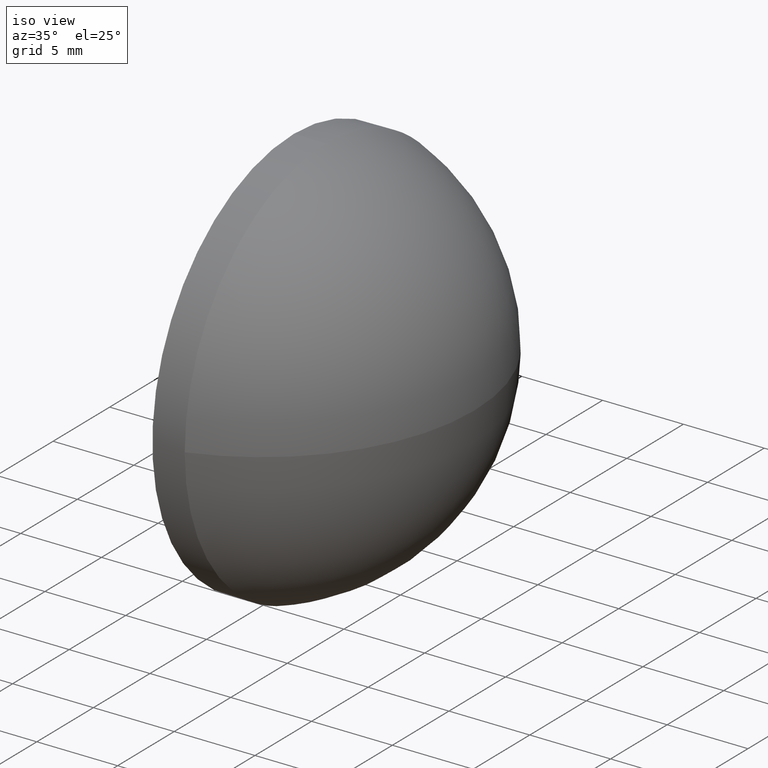
[diagram: clean part render]
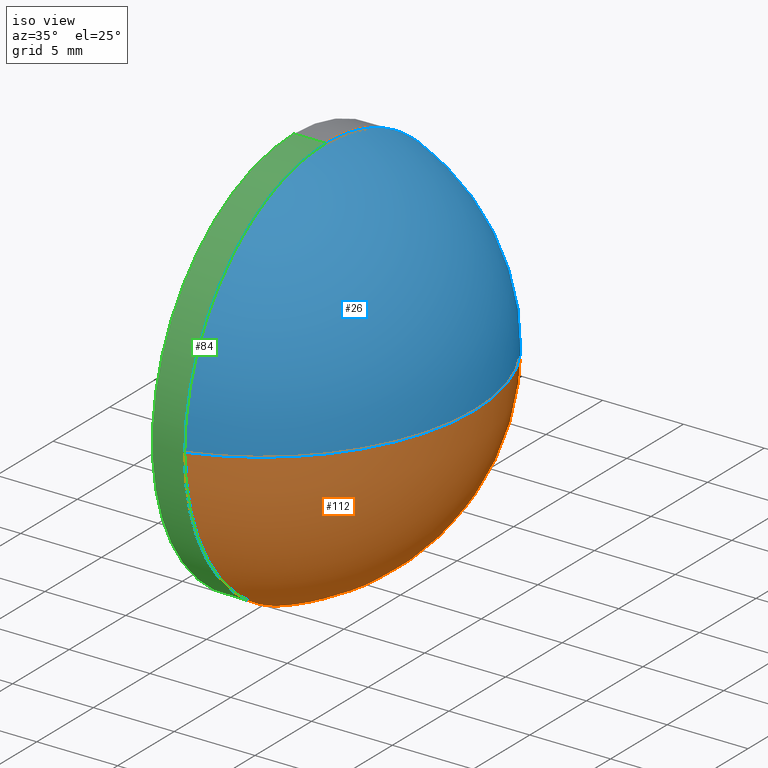
[diagram: same view with three faces highlighted in distinct colors, each labeled with its STEP entity id]
A machine part, iso view with three faces highlighted in distinct colors.
Their STEP definitions:

[orange] entity #112 — the highlighted spherical surface has radius 13.1089 mm.
#5 = CARTESIAN_POINT ( 'NONE',  ( 207.2844079542375400, -115.1914362713783500, -1.530808498934191500E-015 ) ) ;
#8 = DIRECTION ( 'NONE',  ( 1.000000000000000000, 0.0000000000000000000, 0.0000000000000000000 ) ) ;
#9 = ORIENTED_EDGE ( 'NONE', *, *, #115, .F. ) ;
#11 = CIRCLE ( 'NONE', #184, 12.49999999999999600 ) ;
#22 = CIRCLE ( 'NONE', #107, 13.10893013100439200 ) ;
#28 = ORIENTED_EDGE ( 'NONE', *, *, #55, .F. ) ;
#29 = DIRECTION ( 'NONE',  ( -0.0000000000000000000, 0.0000000000000000000, -1.000000000000000000 ) ) ;
#34 = DIRECTION ( 'NONE',  ( 0.0000000000000000000, 1.000000000000000000, 0.0000000000000000000 ) ) ;
#42 = CIRCLE ( 'NONE', #73, 12.49999999999999600 ) ;
#47 = DIRECTION ( 'NONE',  ( 0.0000000000000000000, 1.224646799147353200E-016, -1.000000000000000000 ) ) ;
#50 = VERTEX_POINT ( 'NONE', #88 ) ;
#51 = EDGE_LOOP ( 'NONE', ( #124, #65, #28, #9 ) ) ;
#55 = EDGE_CURVE ( 'NONE', #174, #133, #11, .T. ) ;
#56 = DIRECTION ( 'NONE',  ( 0.0000000000000000000, 0.0000000000000000000, 1.000000000000000000 ) ) ;
#59 = CARTESIAN_POINT ( 'NONE',  ( 207.2844079542375400, -102.6914362713783400, 0.0000000000000000000 ) ) ;
#60 = SPHERICAL_SURFACE ( 'NONE', #81, 13.10893013100438500 ) ;
#61 = DIRECTION ( 'NONE',  ( 0.0000000000000000000, 0.0000000000000000000, 1.000000000000000000 ) ) ;
#65 = ORIENTED_EDGE ( 'NONE', *, *, #137, .T. ) ;
#72 = DIRECTION ( 'NONE',  ( -1.000000000000000000, -0.0000000000000000000, -0.0000000000000000000 ) ) ;
#73 = AXIS2_PLACEMENT_3D ( 'NONE', #95, #136, #61 ) ;
#81 = AXIS2_PLACEMENT_3D ( 'NONE', #86, #29, #34 ) ;
#86 = CARTESIAN_POINT ( 'NONE',  ( 203.3354778232331100, -102.6914362713783400, 0.0000000000000000000 ) ) ;
#88 = CARTESIAN_POINT ( 'NONE',  ( 216.4444079542375100, -102.6914362713783400, 0.0000000000000000000 ) ) ;
#93 = DIRECTION ( 'NONE',  ( -0.0000000000000000000, 0.0000000000000000000, 1.000000000000000000 ) ) ;
#94 = FACE_OUTER_BOUND ( 'NONE', #51, .T. ) ;
#95 = CARTESIAN_POINT ( 'NONE',  ( 207.2844079542375400, -102.6914362713783400, 0.0000000000000000000 ) ) ;
#107 = AXIS2_PLACEMENT_3D ( 'NONE', #180, #93, #8 ) ;
#110 = DIRECTION ( 'NONE',  ( 0.0000000000000000000, 1.000000000000000000, 1.224646799147352500E-016 ) ) ;
#112 = ADVANCED_FACE ( 'NONE', ( #94 ), #60, .T. ) ;
#115 = EDGE_CURVE ( 'NONE', #152, #174, #42, .T. ) ;
#124 = ORIENTED_EDGE ( 'NONE', *, *, #127, .F. ) ;
#127 = EDGE_CURVE ( 'NONE', #50, #152, #22, .T. ) ;
#133 = VERTEX_POINT ( 'NONE', #5 ) ;
#136 = DIRECTION ( 'NONE',  ( -1.000000000000000000, -0.0000000000000000000, -0.0000000000000000000 ) ) ;
#137 = EDGE_CURVE ( 'NONE', #50, #133, #172, .T. ) ;
#152 = VERTEX_POINT ( 'NONE', #167 ) ;
#155 = AXIS2_PLACEMENT_3D ( 'NONE', #178, #47, #110 ) ;
#167 = CARTESIAN_POINT ( 'NONE',  ( 207.2844079542375400, -90.19143627137832200, 0.0000000000000000000 ) ) ;
#168 = CARTESIAN_POINT ( 'NONE',  ( 207.2844079542375400, -102.6914362713783400, -12.49999999999999600 ) ) ;
#172 = CIRCLE ( 'NONE', #155, 13.10893013100439200 ) ;
#174 = VERTEX_POINT ( 'NONE', #168 ) ;
#178 = CARTESIAN_POINT ( 'NONE',  ( 203.3354778232331100, -102.6914362713783400, 0.0000000000000000000 ) ) ;
#180 = CARTESIAN_POINT ( 'NONE',  ( 203.3354778232331100, -102.6914362713783400, 0.0000000000000000000 ) ) ;
#184 = AXIS2_PLACEMENT_3D ( 'NONE', #59, #72, #56 ) ;

[blue] entity #26 — the highlighted spherical surface has radius 13.1089 mm.
#5 = CARTESIAN_POINT ( 'NONE',  ( 207.2844079542375400, -115.1914362713783500, -1.530808498934191500E-015 ) ) ;
#8 = DIRECTION ( 'NONE',  ( 1.000000000000000000, 0.0000000000000000000, 0.0000000000000000000 ) ) ;
#14 = DIRECTION ( 'NONE',  ( -1.000000000000000000, -0.0000000000000000000, -0.0000000000000000000 ) ) ;
#22 = CIRCLE ( 'NONE', #107, 13.10893013100439200 ) ;
#26 = ADVANCED_FACE ( 'NONE', ( #82 ), #145, .T. ) ;
#33 = DIRECTION ( 'NONE',  ( -1.000000000000000000, -0.0000000000000000000, -0.0000000000000000000 ) ) ;
#41 = AXIS2_PLACEMENT_3D ( 'NONE', #117, #33, #75 ) ;
#47 = DIRECTION ( 'NONE',  ( 0.0000000000000000000, 1.224646799147353200E-016, -1.000000000000000000 ) ) ;
#49 = ORIENTED_EDGE ( 'NONE', *, *, #127, .T. ) ;
#50 = VERTEX_POINT ( 'NONE', #88 ) ;
#52 = AXIS2_PLACEMENT_3D ( 'NONE', #130, #147, #105 ) ;
#67 = ORIENTED_EDGE ( 'NONE', *, *, #99, .F. ) ;
#70 = VERTEX_POINT ( 'NONE', #160 ) ;
#75 = DIRECTION ( 'NONE',  ( 0.0000000000000000000, 0.0000000000000000000, 1.000000000000000000 ) ) ;
#79 = EDGE_CURVE ( 'NONE', #70, #152, #141, .T. ) ;
#82 = FACE_OUTER_BOUND ( 'NONE', #183, .T. ) ;
#88 = CARTESIAN_POINT ( 'NONE',  ( 216.4444079542375100, -102.6914362713783400, 0.0000000000000000000 ) ) ;
#90 = CIRCLE ( 'NONE', #98, 12.49999999999999600 ) ;
#93 = DIRECTION ( 'NONE',  ( -0.0000000000000000000, 0.0000000000000000000, 1.000000000000000000 ) ) ;
#98 = AXIS2_PLACEMENT_3D ( 'NONE', #103, #14, #116 ) ;
#99 = EDGE_CURVE ( 'NONE', #133, #70, #90, .T. ) ;
#103 = CARTESIAN_POINT ( 'NONE',  ( 207.2844079542375400, -102.6914362713783400, 0.0000000000000000000 ) ) ;
#105 = DIRECTION ( 'NONE',  ( 0.0000000000000000000, 1.000000000000000000, 0.0000000000000000000 ) ) ;
#107 = AXIS2_PLACEMENT_3D ( 'NONE', #180, #93, #8 ) ;
#110 = DIRECTION ( 'NONE',  ( 0.0000000000000000000, 1.000000000000000000, 1.224646799147352500E-016 ) ) ;
#116 = DIRECTION ( 'NONE',  ( 0.0000000000000000000, 0.0000000000000000000, 1.000000000000000000 ) ) ;
#117 = CARTESIAN_POINT ( 'NONE',  ( 207.2844079542375400, -102.6914362713783400, 0.0000000000000000000 ) ) ;
#125 = ORIENTED_EDGE ( 'NONE', *, *, #137, .F. ) ;
#127 = EDGE_CURVE ( 'NONE', #50, #152, #22, .T. ) ;
#130 = CARTESIAN_POINT ( 'NONE',  ( 203.3354778232331100, -102.6914362713783400, 0.0000000000000000000 ) ) ;
#133 = VERTEX_POINT ( 'NONE', #5 ) ;
#137 = EDGE_CURVE ( 'NONE', #50, #133, #172, .T. ) ;
#141 = CIRCLE ( 'NONE', #41, 12.49999999999999600 ) ;
#145 = SPHERICAL_SURFACE ( 'NONE', #52, 13.10893013100438500 ) ;
#147 = DIRECTION ( 'NONE',  ( -0.0000000000000000000, 0.0000000000000000000, -1.000000000000000000 ) ) ;
#152 = VERTEX_POINT ( 'NONE', #167 ) ;
#155 = AXIS2_PLACEMENT_3D ( 'NONE', #178, #47, #110 ) ;
#160 = CARTESIAN_POINT ( 'NONE',  ( 207.2844079542375400, -102.6914362713783400, 12.49999999999999600 ) ) ;
#167 = CARTESIAN_POINT ( 'NONE',  ( 207.2844079542375400, -90.19143627137832200, 0.0000000000000000000 ) ) ;
#170 = ORIENTED_EDGE ( 'NONE', *, *, #79, .F. ) ;
#172 = CIRCLE ( 'NONE', #155, 13.10893013100439200 ) ;
#178 = CARTESIAN_POINT ( 'NONE',  ( 203.3354778232331100, -102.6914362713783400, 0.0000000000000000000 ) ) ;
#180 = CARTESIAN_POINT ( 'NONE',  ( 203.3354778232331100, -102.6914362713783400, 0.0000000000000000000 ) ) ;
#183 = EDGE_LOOP ( 'NONE', ( #125, #49, #170, #67 ) ) ;

[green] entity #84 — the highlighted cylindrical surface (partial cylindrical patch) has radius 12.5 mm, axis along (-1, -0, -0).
#3 = VERTEX_POINT ( 'NONE', #131 ) ;
#5 = CARTESIAN_POINT ( 'NONE',  ( 207.2844079542375400, -115.1914362713783500, -1.530808498934191500E-015 ) ) ;
#11 = CIRCLE ( 'NONE', #184, 12.49999999999999600 ) ;
#14 = DIRECTION ( 'NONE',  ( -1.000000000000000000, -0.0000000000000000000, -0.0000000000000000000 ) ) ;
#15 = ORIENTED_EDGE ( 'NONE', *, *, #99, .T. ) ;
#20 = CYLINDRICAL_SURFACE ( 'NONE', #121, 12.49999999999999600 ) ;
#21 = CIRCLE ( 'NONE', #126, 12.49999999999999600 ) ;
#27 = EDGE_CURVE ( 'NONE', #70, #3, #100, .T. ) ;
#35 = EDGE_LOOP ( 'NONE', ( #156, #128, #15, #142, #39 ) ) ;
#39 = ORIENTED_EDGE ( 'NONE', *, *, #157, .F. ) ;
#43 = DIRECTION ( 'NONE',  ( -1.000000000000000000, -0.0000000000000000000, -0.0000000000000000000 ) ) ;
#53 = VECTOR ( 'NONE', #78, 1000.000000000000000 ) ;
#55 = EDGE_CURVE ( 'NONE', #174, #133, #11, .T. ) ;
#56 = DIRECTION ( 'NONE',  ( 0.0000000000000000000, 0.0000000000000000000, 1.000000000000000000 ) ) ;
#57 = FACE_OUTER_BOUND ( 'NONE', #35, .T. ) ;
#59 = CARTESIAN_POINT ( 'NONE',  ( 207.2844079542375400, -102.6914362713783400, 0.0000000000000000000 ) ) ;
#62 = CARTESIAN_POINT ( 'NONE',  ( 205.2844079542375400, -102.6914362713783400, 0.0000000000000000000 ) ) ;
#70 = VERTEX_POINT ( 'NONE', #160 ) ;
#72 = DIRECTION ( 'NONE',  ( -1.000000000000000000, -0.0000000000000000000, -0.0000000000000000000 ) ) ;
#78 = DIRECTION ( 'NONE',  ( -1.000000000000000000, -0.0000000000000000000, -0.0000000000000000000 ) ) ;
#84 = ADVANCED_FACE ( 'NONE', ( #57 ), #20, .T. ) ;
#87 = VERTEX_POINT ( 'NONE', #161 ) ;
#90 = CIRCLE ( 'NONE', #98, 12.49999999999999600 ) ;
#98 = AXIS2_PLACEMENT_3D ( 'NONE', #103, #14, #116 ) ;
#99 = EDGE_CURVE ( 'NONE', #133, #70, #90, .T. ) ;
#100 = LINE ( 'NONE', #164, #108 ) ;
#103 = CARTESIAN_POINT ( 'NONE',  ( 207.2844079542375400, -102.6914362713783400, 0.0000000000000000000 ) ) ;
#108 = VECTOR ( 'NONE', #132, 1000.000000000000000 ) ;
#116 = DIRECTION ( 'NONE',  ( 0.0000000000000000000, 0.0000000000000000000, 1.000000000000000000 ) ) ;
#118 = CARTESIAN_POINT ( 'NONE',  ( 203.7723767123476400, -102.6914362713783400, 0.0000000000000000000 ) ) ;
#120 = LINE ( 'NONE', #135, #53 ) ;
#121 = AXIS2_PLACEMENT_3D ( 'NONE', #118, #176, #175 ) ;
#126 = AXIS2_PLACEMENT_3D ( 'NONE', #62, #43, #148 ) ;
#128 = ORIENTED_EDGE ( 'NONE', *, *, #55, .T. ) ;
#131 = CARTESIAN_POINT ( 'NONE',  ( 205.2844079542375400, -102.6914362713783400, 12.49999999999999600 ) ) ;
#132 = DIRECTION ( 'NONE',  ( -1.000000000000000000, -0.0000000000000000000, -0.0000000000000000000 ) ) ;
#133 = VERTEX_POINT ( 'NONE', #5 ) ;
#135 = CARTESIAN_POINT ( 'NONE',  ( 203.7723767123476400, -102.6914362713783400, -12.49999999999999600 ) ) ;
#142 = ORIENTED_EDGE ( 'NONE', *, *, #27, .T. ) ;
#146 = EDGE_CURVE ( 'NONE', #174, #87, #120, .T. ) ;
#148 = DIRECTION ( 'NONE',  ( 0.0000000000000000000, 0.0000000000000000000, 1.000000000000000000 ) ) ;
#156 = ORIENTED_EDGE ( 'NONE', *, *, #146, .F. ) ;
#157 = EDGE_CURVE ( 'NONE', #87, #3, #21, .T. ) ;
#160 = CARTESIAN_POINT ( 'NONE',  ( 207.2844079542375400, -102.6914362713783400, 12.49999999999999600 ) ) ;
#161 = CARTESIAN_POINT ( 'NONE',  ( 205.2844079542375400, -102.6914362713783400, -12.49999999999999600 ) ) ;
#164 = CARTESIAN_POINT ( 'NONE',  ( 203.7723767123476400, -102.6914362713783400, 12.49999999999999600 ) ) ;
#168 = CARTESIAN_POINT ( 'NONE',  ( 207.2844079542375400, -102.6914362713783400, -12.49999999999999600 ) ) ;
#174 = VERTEX_POINT ( 'NONE', #168 ) ;
#175 = DIRECTION ( 'NONE',  ( 0.0000000000000000000, 0.0000000000000000000, 1.000000000000000000 ) ) ;
#176 = DIRECTION ( 'NONE',  ( -1.000000000000000000, -0.0000000000000000000, -0.0000000000000000000 ) ) ;
#184 = AXIS2_PLACEMENT_3D ( 'NONE', #59, #72, #56 ) ;